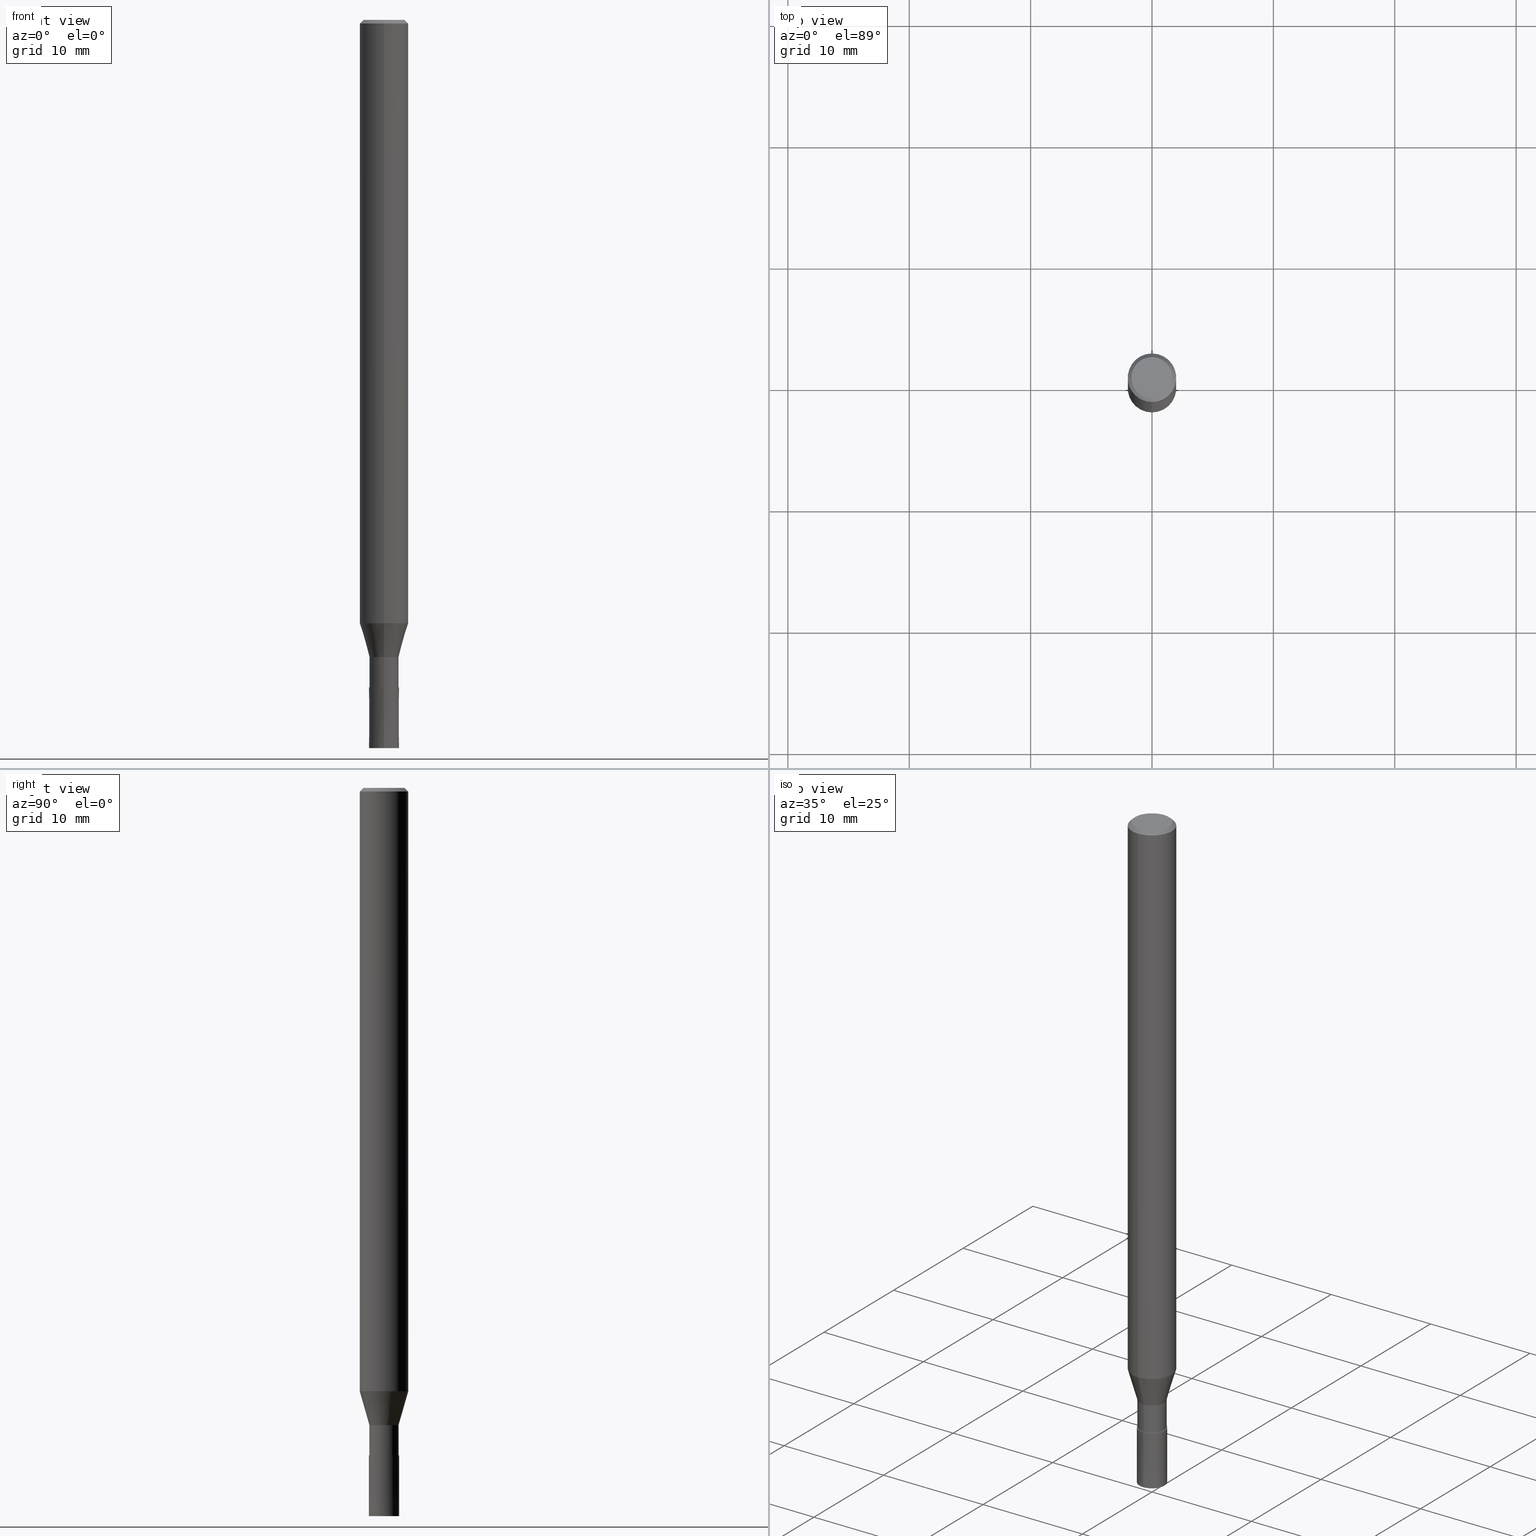
[diagram: canonical four-view strip — front | top / right | iso, engineering-drawing reading convention]
A machine part, canonical four-view strip (front | top / right | iso — engineering-drawing reading convention). The complete STEP part file that produces these views, byte-faithful:
ISO-10303-21;
HEADER;
FILE_DESCRIPTION(('no description'),'unknown implementation level');
FILE_NAME('DLC-AZS3025-075-Huellk.stp','  ',('CIMSOURCE GmbH'),('CADClick - KiM GmbH - www.kimweb.de'),'unknown preprocess','ACIS','unknown authorization');
FILE_SCHEMA(('automotive_design'));
ENDSEC;
DATA;
#1=MECHANICAL_DESIGN_GEOMETRIC_PRESENTATION_REPRESENTATION(' ',(#14,#15,#16,#17,#18,#19,#20,#21,#22,#23,#24,#25,#26,#27,#28,#29,#30,#31,#32,#33,#34,#35,#36,#37,#38,#39,#40,#41,#42,#43,#44,#45,#46,#47,#48,#49,#50,#51,#52,#53,#54,#55,#56,#57,#58,#59,#60,#61,#62,#63,#64,#65,#66,#67,#68,#69,#70,#71,#72),#10);
#2=PRODUCT_DEFINITION_CONTEXT('',#73,'design');
#3=APPLICATION_PROTOCOL_DEFINITION('INTERNATIONAL STANDARD','automotive_design',1994,#73);
#4=PRODUCT_CATEGORY_RELATIONSHIP('NONE','NONE',#74,#75);
#5=SHAPE_DEFINITION_REPRESENTATION(#76,#77);
#6=PRODUCT_DEFINITION_CONTEXT('',#78,'design');
#7=APPLICATION_PROTOCOL_DEFINITION('INTERNATIONAL STANDARD','automotive_design',1994,#78);
#8=PRODUCT_CATEGORY_RELATIONSHIP('NONE','NONE',#79,#80);
#9=SHAPE_DEFINITION_REPRESENTATION(#81,#82);
#10= (GEOMETRIC_REPRESENTATION_CONTEXT(3)GLOBAL_UNCERTAINTY_ASSIGNED_CONTEXT((#85))GLOBAL_UNIT_ASSIGNED_CONTEXT((#87,#88,#89))REPRESENTATION_CONTEXT('NONE','WORKSPACE'));
#14=STYLED_ITEM('',(#91),#92);
#15=STYLED_ITEM('',(#93),#94);
#16=STYLED_ITEM('',(#95),#96);
#17=STYLED_ITEM('',(#97),#98);
#18=STYLED_ITEM('',(#99),#100);
#19=STYLED_ITEM('',(#101),#102);
#20=STYLED_ITEM('',(#103),#104);
#21=STYLED_ITEM('',(#105),#106);
#22=STYLED_ITEM('',(#107),#108);
#23=STYLED_ITEM('',(#109),#110);
#24=STYLED_ITEM('',(#111),#112);
#25=STYLED_ITEM('',(#113),#114);
#26=STYLED_ITEM('',(#115),#116);
#27=STYLED_ITEM('',(#117),#118);
#28=STYLED_ITEM('',(#119),#120);
#29=STYLED_ITEM('',(#121),#122);
#30=STYLED_ITEM('',(#123),#124);
#31=STYLED_ITEM('',(#125),#126);
#32=STYLED_ITEM('',(#127),#128);
#33=STYLED_ITEM('',(#129),#130);
#34=STYLED_ITEM('',(#131),#132);
#35=STYLED_ITEM('',(#133),#134);
#36=STYLED_ITEM('',(#135),#136);
#37=STYLED_ITEM('',(#137),#138);
#38=STYLED_ITEM('',(#139),#140);
#39=STYLED_ITEM('',(#141),#142);
#40=STYLED_ITEM('',(#143),#144);
#41=STYLED_ITEM('',(#145),#146);
#42=STYLED_ITEM('',(#147),#148);
#43=STYLED_ITEM('',(#149),#150);
#44=STYLED_ITEM('',(#151),#152);
#45=STYLED_ITEM('',(#153),#154);
#46=STYLED_ITEM('',(#155),#156);
#47=STYLED_ITEM('',(#157),#158);
#48=STYLED_ITEM('',(#159),#160);
#49=STYLED_ITEM('',(#161),#162);
#50=STYLED_ITEM('',(#163),#164);
#51=STYLED_ITEM('',(#165),#166);
#52=STYLED_ITEM('',(#167),#168);
#53=STYLED_ITEM('',(#169),#170);
#54=STYLED_ITEM('',(#171),#172);
#55=STYLED_ITEM('',(#173),#174);
#56=STYLED_ITEM('',(#175),#176);
#57=STYLED_ITEM('',(#177),#178);
#58=STYLED_ITEM('',(#179),#180);
#59=STYLED_ITEM('',(#181),#182);
#60=STYLED_ITEM('',(#183),#184);
#61=STYLED_ITEM('',(#185),#186);
#62=STYLED_ITEM('',(#187),#188);
#63=STYLED_ITEM('',(#189),#190);
#64=STYLED_ITEM('',(#191),#192);
#65=STYLED_ITEM('',(#193),#194);
#66=STYLED_ITEM('',(#195),#196);
#67=STYLED_ITEM('',(#197),#198);
#68=STYLED_ITEM('',(#199),#200);
#69=STYLED_ITEM('',(#201),#202);
#70=STYLED_ITEM('',(#203),#204);
#71=STYLED_ITEM('',(#205),#206);
#72=STYLED_ITEM('',(#207),#208);
#73=APPLICATION_CONTEXT(' ');
#74=PRODUCT_CATEGORY('part','NONE');
#75=PRODUCT_RELATED_PRODUCT_CATEGORY('detail',' ',(#209));
#76=PRODUCT_DEFINITION_SHAPE('NONE','NONE',#210);
#77=ADVANCED_BREP_SHAPE_REPRESENTATION('1',(#120,#211),#10);
#78=APPLICATION_CONTEXT(' ');
#79=PRODUCT_CATEGORY('part','NONE');
#80=PRODUCT_RELATED_PRODUCT_CATEGORY('detail',' ',(#212));
#81=PRODUCT_DEFINITION_SHAPE('NONE','NONE',#213);
#82=ADVANCED_BREP_SHAPE_REPRESENTATION('2',(#110,#214),#10);
#85=UNCERTAINTY_MEASURE_WITH_UNIT(LENGTH_MEASURE(1.0E-006),#87,'','');
#87= (CONVERSION_BASED_UNIT('MILLIMETRE',#217)LENGTH_UNIT()NAMED_UNIT(#220));
#88= (NAMED_UNIT(#222)PLANE_ANGLE_UNIT()SI_UNIT($,.RADIAN.));
#89= (NAMED_UNIT(#222)SOLID_ANGLE_UNIT()SI_UNIT($,.STERADIAN.));
#91=PRESENTATION_STYLE_ASSIGNMENT((#228));
#92=ADVANCED_FACE('',(#229),#230,.T.);
#93=PRESENTATION_STYLE_ASSIGNMENT((#231));
#94=ADVANCED_FACE('',(#232),#233,.T.);
#95=PRESENTATION_STYLE_ASSIGNMENT((#234));
#96=EDGE_CURVE('',#162,#202,#235,.T.);
#97=PRESENTATION_STYLE_ASSIGNMENT((#236));
#98=EDGE_CURVE('',#106,#118,#237,.T.);
#99=PRESENTATION_STYLE_ASSIGNMENT((#238));
#100=EDGE_CURVE('',#126,#176,#239,.T.);
#101=PRESENTATION_STYLE_ASSIGNMENT((#240));
#102=VERTEX_POINT('',#241);
#103=PRESENTATION_STYLE_ASSIGNMENT((#242));
#104=EDGE_CURVE('',#162,#188,#243,.T.);
#105=PRESENTATION_STYLE_ASSIGNMENT((#244));
#106=VERTEX_POINT('',#245);
#107=PRESENTATION_STYLE_ASSIGNMENT((#246));
#108=EDGE_CURVE('',#176,#202,#247,.T.);
#109=PRESENTATION_STYLE_ASSIGNMENT((#248));
#110=MANIFOLD_SOLID_BREP('2',#249);
#111=PRESENTATION_STYLE_ASSIGNMENT((#250));
#112=VERTEX_POINT('',#251);
#113=PRESENTATION_STYLE_ASSIGNMENT((#252));
#114=ADVANCED_FACE('',(#253),#254,.T.);
#115=PRESENTATION_STYLE_ASSIGNMENT((#255));
#116=EDGE_CURVE('',#186,#172,#256,.T.);
#117=PRESENTATION_STYLE_ASSIGNMENT((#257));
#118=VERTEX_POINT('',#258);
#119=PRESENTATION_STYLE_ASSIGNMENT((#259));
#120=MANIFOLD_SOLID_BREP('1',#260);
#121=PRESENTATION_STYLE_ASSIGNMENT((#261));
#122=ADVANCED_FACE('',(#262),#263,.T.);
#123=PRESENTATION_STYLE_ASSIGNMENT((#264));
#124=EDGE_CURVE('',#188,#162,#265,.T.);
#125=PRESENTATION_STYLE_ASSIGNMENT((#266));
#126=VERTEX_POINT('',#267);
#127=PRESENTATION_STYLE_ASSIGNMENT((#268));
#128=EDGE_CURVE('',#202,#176,#269,.T.);
#129=PRESENTATION_STYLE_ASSIGNMENT((#270));
#130=VERTEX_POINT('',#271);
#131=PRESENTATION_STYLE_ASSIGNMENT((#272));
#132=ADVANCED_FACE('',(#273),#274,.T.);
#133=PRESENTATION_STYLE_ASSIGNMENT((#275));
#134=EDGE_CURVE('',#148,#172,#276,.T.);
#135=PRESENTATION_STYLE_ASSIGNMENT((#277));
#136=EDGE_CURVE('',#130,#200,#278,.T.);
#137=PRESENTATION_STYLE_ASSIGNMENT((#279));
#138=ADVANCED_FACE('',(#280,#281),#282,.T.);
#139=PRESENTATION_STYLE_ASSIGNMENT((#283));
#140=EDGE_CURVE('',#200,#130,#284,.T.);
#141=PRESENTATION_STYLE_ASSIGNMENT((#285));
#142=EDGE_CURVE('',#200,#118,#286,.T.);
#143=PRESENTATION_STYLE_ASSIGNMENT((#287));
#144=ADVANCED_FACE('',(#288),#289,.T.);
#145=PRESENTATION_STYLE_ASSIGNMENT((#290));
#146=ADVANCED_FACE('',(#291),#292,.T.);
#147=PRESENTATION_STYLE_ASSIGNMENT((#293));
#148=VERTEX_POINT('',#294);
#149=PRESENTATION_STYLE_ASSIGNMENT((#295));
#150=EDGE_CURVE('',#180,#186,#296,.T.);
#151=PRESENTATION_STYLE_ASSIGNMENT((#297));
#152=EDGE_CURVE('',#172,#192,#298,.T.);
#153=PRESENTATION_STYLE_ASSIGNMENT((#299));
#154=EDGE_CURVE('',#192,#180,#300,.T.);
#155=PRESENTATION_STYLE_ASSIGNMENT((#301));
#156=EDGE_CURVE('',#172,#186,#302,.T.);
#157=PRESENTATION_STYLE_ASSIGNMENT((#303));
#158=EDGE_CURVE('',#118,#106,#304,.T.);
#159=PRESENTATION_STYLE_ASSIGNMENT((#305));
#160=ADVANCED_FACE('',(#306),#307,.T.);
#161=PRESENTATION_STYLE_ASSIGNMENT((#308));
#162=VERTEX_POINT('',#309);
#163=PRESENTATION_STYLE_ASSIGNMENT((#310));
#164=ADVANCED_FACE('',(#311),#312,.T.);
#165=PRESENTATION_STYLE_ASSIGNMENT((#313));
#166=EDGE_CURVE('',#102,#126,#314,.T.);
#167=PRESENTATION_STYLE_ASSIGNMENT((#315));
#168=ADVANCED_FACE('',(#316),#317,.T.);
#169=PRESENTATION_STYLE_ASSIGNMENT((#318));
#170=EDGE_CURVE('',#202,#102,#319,.T.);
#171=PRESENTATION_STYLE_ASSIGNMENT((#320));
#172=VERTEX_POINT('',#321);
#173=PRESENTATION_STYLE_ASSIGNMENT((#322));
#174=EDGE_CURVE('',#176,#188,#323,.T.);
#175=PRESENTATION_STYLE_ASSIGNMENT((#324));
#176=VERTEX_POINT('',#325);
#177=PRESENTATION_STYLE_ASSIGNMENT((#326));
#178=EDGE_CURVE('',#112,#148,#327,.T.);
#179=PRESENTATION_STYLE_ASSIGNMENT((#328));
#180=VERTEX_POINT('',#329);
#181=PRESENTATION_STYLE_ASSIGNMENT((#330));
#182=ADVANCED_FACE('',(#331),#332,.T.);
#183=PRESENTATION_STYLE_ASSIGNMENT((#333));
#184=ADVANCED_FACE('',(#334),#335,.T.);
#185=PRESENTATION_STYLE_ASSIGNMENT((#336));
#186=VERTEX_POINT('',#337);
#187=PRESENTATION_STYLE_ASSIGNMENT((#338));
#188=VERTEX_POINT('',#339);
#189=PRESENTATION_STYLE_ASSIGNMENT((#340));
#190=EDGE_CURVE('',#148,#112,#341,.T.);
#191=PRESENTATION_STYLE_ASSIGNMENT((#342));
#192=VERTEX_POINT('',#343);
#193=PRESENTATION_STYLE_ASSIGNMENT((#344));
#194=EDGE_CURVE('',#106,#130,#345,.T.);
#195=PRESENTATION_STYLE_ASSIGNMENT((#346));
#196=ADVANCED_FACE('',(#347),#348,.T.);
#197=PRESENTATION_STYLE_ASSIGNMENT((#349));
#198=EDGE_CURVE('',#186,#112,#350,.T.);
#199=PRESENTATION_STYLE_ASSIGNMENT((#351));
#200=VERTEX_POINT('',#352);
#201=PRESENTATION_STYLE_ASSIGNMENT((#353));
#202=VERTEX_POINT('',#354);
#203=PRESENTATION_STYLE_ASSIGNMENT((#355));
#204=ADVANCED_FACE('',(#356),#357,.T.);
#205=PRESENTATION_STYLE_ASSIGNMENT((#358));
#206=EDGE_CURVE('',#180,#192,#359,.T.);
#207=PRESENTATION_STYLE_ASSIGNMENT((#360));
#208=EDGE_CURVE('',#126,#102,#361,.T.);
#209=PRODUCT('1','1','PART-1-DESC',(#362));
#210=PRODUCT_DEFINITION('NONE','NONE',#363,#2);
#211=AXIS2_PLACEMENT_3D('',#364,#365,#366);
#212=PRODUCT('2','2','PART-2-DESC',(#367));
#213=PRODUCT_DEFINITION('NONE','NONE',#368,#6);
#214=AXIS2_PLACEMENT_3D('',#369,#370,#371);
#217=LENGTH_MEASURE_WITH_UNIT(LENGTH_MEASURE(1.0),#372);
#220=DIMENSIONAL_EXPONENTS(1.0,0.0,0.0,0.0,0.0,0.0,0.0);
#222=DIMENSIONAL_EXPONENTS(0.0,0.0,0.0,0.0,0.0,0.0,0.0);
#228=SURFACE_STYLE_USAGE(.BOTH.,#373);
#229=FACE_OUTER_BOUND('',#374,.T.);
#230=PLANE('',#375);
#231=SURFACE_STYLE_USAGE(.BOTH.,#376);
#232=FACE_OUTER_BOUND('',#377,.T.);
#233=CYLINDRICAL_SURFACE('',#378,2.0);
#234=CURVE_STYLE('',#379,POSITIVE_LENGTH_MEASURE(1.0E-006),#380);
#235=LINE('',#381,#382);
#236=CURVE_STYLE('',#383,POSITIVE_LENGTH_MEASURE(1.0E-006),#384);
#237=CIRCLE('',#385,1.2499);
#238=CURVE_STYLE('',#386,POSITIVE_LENGTH_MEASURE(1.0E-006),#387);
#239=LINE('',#388,#389);
#240=POINT_STYLE(' ',#390,POSITIVE_LENGTH_MEASURE(1.0E-006),#391);
#241=CARTESIAN_POINT('',(2.08183080149804E-016,-1.7,0.0));
#242=CURVE_STYLE('',#392,POSITIVE_LENGTH_MEASURE(1.0E-006),#393);
#243=CIRCLE('',#394,2.0);
#244=POINT_STYLE(' ',#395,POSITIVE_LENGTH_MEASURE(1.0E-006),#396);
#245=CARTESIAN_POINT('',(0.0,1.2499,-55.0));
#246=CURVE_STYLE('',#397,POSITIVE_LENGTH_MEASURE(1.0E-006),#398);
#247=CIRCLE('',#399,2.0);
#248=SURFACE_STYLE_USAGE(.BOTH.,#400);
#249=CLOSED_SHELL('',(#146,#182,#196,#160));
#250=POINT_STYLE(' ',#401,POSITIVE_LENGTH_MEASURE(1.0E-006),#402);
#251=CARTESIAN_POINT('',(0.0,1.19995,-55.0));
#252=SURFACE_STYLE_USAGE(.BOTH.,#403);
#253=FACE_OUTER_BOUND('',#404,.T.);
#254=CYLINDRICAL_SURFACE('',#405,2.0);
#255=CURVE_STYLE('',#406,POSITIVE_LENGTH_MEASURE(1.0E-006),#407);
#256=CIRCLE('',#408,1.19995);
#257=POINT_STYLE(' ',#409,POSITIVE_LENGTH_MEASURE(1.0E-006),#410);
#258=CARTESIAN_POINT('',(1.53063548164259E-016,-1.2499,-55.0));
#259=SURFACE_STYLE_USAGE(.BOTH.,#411);
#260=CLOSED_SHELL('',(#144,#122,#94,#204,#138,#164,#132,#114,#168,#184,#92));
#261=SURFACE_STYLE_USAGE(.BOTH.,#412);
#262=FACE_OUTER_BOUND('',#413,.T.);
#263=CONICAL_SURFACE('',#414,1.59995,0.279246180255813);
#264=CURVE_STYLE('',#415,POSITIVE_LENGTH_MEASURE(1.0E-006),#416);
#265=CIRCLE('',#417,2.0);
#266=POINT_STYLE(' ',#418,POSITIVE_LENGTH_MEASURE(1.0E-006),#419);
#267=CARTESIAN_POINT('',(0.0,1.7,0.0));
#268=CURVE_STYLE('',#420,POSITIVE_LENGTH_MEASURE(1.0E-006),#421);
#269=CIRCLE('',#422,2.0);
#270=POINT_STYLE(' ',#423,POSITIVE_LENGTH_MEASURE(1.0E-006),#424);
#271=CARTESIAN_POINT('',(0.0,1.25,-60.0));
#272=SURFACE_STYLE_USAGE(.BOTH.,#425);
#273=FACE_OUTER_BOUND('',#426,.T.);
#274=CONICAL_SURFACE('',#427,1.85,0.785398163397453);
#275=CURVE_STYLE('',#428,POSITIVE_LENGTH_MEASURE(1.0E-006),#429);
#276=LINE('',#430,#431);
#277=CURVE_STYLE('',#432,POSITIVE_LENGTH_MEASURE(1.0E-006),#433);
#278=CIRCLE('',#434,1.25);
#279=SURFACE_STYLE_USAGE(.BOTH.,#435);
#280=FACE_OUTER_BOUND('',#436,.T.);
#281=FACE_BOUND('',#437,.T.);
#282=PLANE('',#438);
#283=CURVE_STYLE('',#439,POSITIVE_LENGTH_MEASURE(1.0E-006),#440);
#284=CIRCLE('',#441,1.25);
#285=CURVE_STYLE('',#442,POSITIVE_LENGTH_MEASURE(1.0E-006),#443);
#286=LINE('',#444,#445);
#287=SURFACE_STYLE_USAGE(.BOTH.,#446);
#288=FACE_OUTER_BOUND('',#447,.T.);
#289=CYLINDRICAL_SURFACE('',#448,1.19995);
#290=SURFACE_STYLE_USAGE(.BOTH.,#449);
#291=FACE_OUTER_BOUND('',#450,.T.);
#292=CONICAL_SURFACE('',#451,1.24995,1.99999999973311E-005);
#293=POINT_STYLE(' ',#452,POSITIVE_LENGTH_MEASURE(1.0E-006),#453);
#294=CARTESIAN_POINT('',(1.46946639426916E-016,-1.19995,-55.0));
#295=CURVE_STYLE('',#454,POSITIVE_LENGTH_MEASURE(1.0E-006),#455);
#296=LINE('',#456,#457);
#297=CURVE_STYLE('',#458,POSITIVE_LENGTH_MEASURE(1.0E-006),#459);
#298=LINE('',#460,#461);
#299=CURVE_STYLE('',#462,POSITIVE_LENGTH_MEASURE(1.0E-006),#463);
#300=CIRCLE('',#464,1.99995);
#301=CURVE_STYLE('',#465,POSITIVE_LENGTH_MEASURE(1.0E-006),#466);
#302=CIRCLE('',#467,1.19995);
#303=CURVE_STYLE('',#468,POSITIVE_LENGTH_MEASURE(1.0E-006),#469);
#304=CIRCLE('',#470,1.2499);
#305=SURFACE_STYLE_USAGE(.BOTH.,#471);
#306=FACE_OUTER_BOUND('',#472,.T.);
#307=PLANE('',#473);
#308=POINT_STYLE(' ',#474,POSITIVE_LENGTH_MEASURE(1.0E-006),#475);
#309=CARTESIAN_POINT('',(2.44921270764475E-016,-2.0,-49.71));
#310=SURFACE_STYLE_USAGE(.BOTH.,#476);
#311=FACE_OUTER_BOUND('',#477,.T.);
#312=PLANE('',#478);
#313=CURVE_STYLE('',#479,POSITIVE_LENGTH_MEASURE(1.0E-006),#480);
#314=CIRCLE('',#481,1.7);
#315=SURFACE_STYLE_USAGE(.BOTH.,#482);
#316=FACE_OUTER_BOUND('',#483,.T.);
#317=CONICAL_SURFACE('',#484,1.59995,0.279246180255813);
#318=CURVE_STYLE('',#485,POSITIVE_LENGTH_MEASURE(1.0E-006),#486);
#319=LINE('',#487,#488);
#320=POINT_STYLE(' ',#489,POSITIVE_LENGTH_MEASURE(1.0E-006),#490);
#321=CARTESIAN_POINT('',(1.46946639426916E-016,-1.19995,-52.5));
#322=CURVE_STYLE('',#491,POSITIVE_LENGTH_MEASURE(1.0E-006),#492);
#323=LINE('',#493,#494);
#324=POINT_STYLE(' ',#495,POSITIVE_LENGTH_MEASURE(1.0E-006),#496);
#325=CARTESIAN_POINT('',(0.0,2.0,-0.299999999999997));
#326=CURVE_STYLE('',#497,POSITIVE_LENGTH_MEASURE(1.0E-006),#498);
#327=CIRCLE('',#499,1.19995);
#328=POINT_STYLE(' ',#500,POSITIVE_LENGTH_MEASURE(1.0E-006),#501);
#329=CARTESIAN_POINT('',(0.0,1.99995,-49.71));
#330=SURFACE_STYLE_USAGE(.BOTH.,#502);
#331=FACE_OUTER_BOUND('',#503,.T.);
#332=PLANE('',#504);
#333=SURFACE_STYLE_USAGE(.BOTH.,#505);
#334=FACE_OUTER_BOUND('',#506,.T.);
#335=CYLINDRICAL_SURFACE('',#507,1.19995);
#336=POINT_STYLE(' ',#508,POSITIVE_LENGTH_MEASURE(1.0E-006),#509);
#337=CARTESIAN_POINT('',(0.0,1.19995,-52.5));
#338=POINT_STYLE(' ',#510,POSITIVE_LENGTH_MEASURE(1.0E-006),#511);
#339=CARTESIAN_POINT('',(0.0,2.0,-49.71));
#340=CURVE_STYLE('',#512,POSITIVE_LENGTH_MEASURE(1.0E-006),#513);
#341=CIRCLE('',#514,1.19995);
#342=POINT_STYLE(' ',#515,POSITIVE_LENGTH_MEASURE(1.0E-006),#516);
#343=CARTESIAN_POINT('',(2.44915147732706E-016,-1.99995,-49.71));
#344=CURVE_STYLE('',#517,POSITIVE_LENGTH_MEASURE(1.0E-006),#518);
#345=LINE('',#519,#520);
#346=SURFACE_STYLE_USAGE(.BOTH.,#521);
#347=FACE_OUTER_BOUND('',#522,.T.);
#348=CONICAL_SURFACE('',#523,1.24995,1.99999999973311E-005);
#349=CURVE_STYLE('',#524,POSITIVE_LENGTH_MEASURE(1.0E-006),#525);
#350=LINE('',#526,#527);
#351=POINT_STYLE(' ',#528,POSITIVE_LENGTH_MEASURE(1.0E-006),#529);
#352=CARTESIAN_POINT('',(1.53075794227797E-016,-1.25,-60.0));
#353=POINT_STYLE(' ',#530,POSITIVE_LENGTH_MEASURE(1.0E-006),#531);
#354=CARTESIAN_POINT('',(2.44921270764475E-016,-2.0,-0.299999999999997));
#355=SURFACE_STYLE_USAGE(.BOTH.,#532);
#356=FACE_OUTER_BOUND('',#533,.T.);
#357=CONICAL_SURFACE('',#534,1.85,0.785398163397453);
#358=CURVE_STYLE('',#535,POSITIVE_LENGTH_MEASURE(1.0E-006),#536);
#359=CIRCLE('',#537,1.99995);
#360=CURVE_STYLE('',#538,POSITIVE_LENGTH_MEASURE(1.0E-006),#539);
#361=CIRCLE('',#540,1.7);
#362=PRODUCT_CONTEXT('',#73,'mechanical');
#363=PRODUCT_DEFINITION_FORMATION_WITH_SPECIFIED_SOURCE(' ','NONE',#209,.NOT_KNOWN.);
#364=CARTESIAN_POINT('',(0.0,0.0,0.0));
#365=DIRECTION('',(0.0,0.0,1.0));
#366=DIRECTION('',(1.0,0.0,0.0));
#367=PRODUCT_CONTEXT('',#78,'mechanical');
#368=PRODUCT_DEFINITION_FORMATION_WITH_SPECIFIED_SOURCE(' ','NONE',#212,.NOT_KNOWN.);
#369=CARTESIAN_POINT('',(0.0,0.0,0.0));
#370=DIRECTION('',(0.0,0.0,1.0));
#371=DIRECTION('',(1.0,0.0,0.0));
#372= (NAMED_UNIT(#220)LENGTH_UNIT()SI_UNIT(.MILLI.,.METRE.));
#373=SURFACE_SIDE_STYLE('',(#542));
#374=EDGE_LOOP('',(#543,#544));
#375=AXIS2_PLACEMENT_3D('',#545,#546,#547);
#376=SURFACE_SIDE_STYLE('',(#548));
#377=EDGE_LOOP('',(#549,#550,#551,#552));
#378=AXIS2_PLACEMENT_3D('',#553,#554,#555);
#379=DRAUGHTING_PRE_DEFINED_CURVE_FONT('continuous');
#380=COLOUR_RGB('',0.498039215803146,0.498039215803146,0.498039215803146);
#381=CARTESIAN_POINT('',(2.44921270764475E-016,-2.0,-25.005));
#382=VECTOR('',#556,1.0);
#383=DRAUGHTING_PRE_DEFINED_CURVE_FONT('continuous');
#384=COLOUR_RGB('',0.800000011920929,0.800000011920929,0.800000011920929);
#385=AXIS2_PLACEMENT_3D('',#557,#558,#559);
#386=DRAUGHTING_PRE_DEFINED_CURVE_FONT('continuous');
#387=COLOUR_RGB('',0.498039215803146,0.498039215803146,0.498039215803146);
#388=CARTESIAN_POINT('',(-2.2655217545714E-016,1.85,-0.149999999999999));
#389=VECTOR('',#560,1.0);
#390=PRE_DEFINED_MARKER('');
#391=COLOUR_RGB('',0.498039215803146,0.498039215803146,0.498039215803146);
#392=DRAUGHTING_PRE_DEFINED_CURVE_FONT('continuous');
#393=COLOUR_RGB('',0.498039215803146,0.498039215803146,0.498039215803146);
#394=AXIS2_PLACEMENT_3D('',#561,#562,#563);
#395=PRE_DEFINED_MARKER('');
#396=COLOUR_RGB('',0.800000011920929,0.800000011920929,0.800000011920929);
#397=DRAUGHTING_PRE_DEFINED_CURVE_FONT('continuous');
#398=COLOUR_RGB('',0.498039215803146,0.498039215803146,0.498039215803146);
#399=AXIS2_PLACEMENT_3D('',#564,#565,#566);
#400=SURFACE_SIDE_STYLE('',(#567));
#401=PRE_DEFINED_MARKER('');
#402=COLOUR_RGB('',0.498039215803146,0.498039215803146,0.498039215803146);
#403=SURFACE_SIDE_STYLE('',(#568));
#404=EDGE_LOOP('',(#569,#570,#571,#572));
#405=AXIS2_PLACEMENT_3D('',#573,#574,#575);
#406=DRAUGHTING_PRE_DEFINED_CURVE_FONT('continuous');
#407=COLOUR_RGB('',0.498039215803146,0.498039215803146,0.498039215803146);
#408=AXIS2_PLACEMENT_3D('',#576,#577,#578);
#409=PRE_DEFINED_MARKER('');
#410=COLOUR_RGB('',0.800000011920929,0.800000011920929,0.800000011920929);
#411=SURFACE_SIDE_STYLE('',(#579));
#412=SURFACE_SIDE_STYLE('',(#580));
#413=EDGE_LOOP('',(#581,#582,#583,#584));
#414=AXIS2_PLACEMENT_3D('',#585,#586,#587);
#415=DRAUGHTING_PRE_DEFINED_CURVE_FONT('continuous');
#416=COLOUR_RGB('',0.498039215803146,0.498039215803146,0.498039215803146);
#417=AXIS2_PLACEMENT_3D('',#588,#589,#590);
#418=PRE_DEFINED_MARKER('');
#419=COLOUR_RGB('',0.498039215803146,0.498039215803146,0.498039215803146);
#420=DRAUGHTING_PRE_DEFINED_CURVE_FONT('continuous');
#421=COLOUR_RGB('',0.498039215803146,0.498039215803146,0.498039215803146);
#422=AXIS2_PLACEMENT_3D('',#591,#592,#593);
#423=PRE_DEFINED_MARKER('');
#424=COLOUR_RGB('',0.800000011920929,0.800000011920929,0.800000011920929);
#425=SURFACE_SIDE_STYLE('',(#594));
#426=EDGE_LOOP('',(#595,#596,#597,#598));
#427=AXIS2_PLACEMENT_3D('',#599,#600,#601);
#428=DRAUGHTING_PRE_DEFINED_CURVE_FONT('continuous');
#429=COLOUR_RGB('',0.498039215803146,0.498039215803146,0.498039215803146);
#430=CARTESIAN_POINT('',(1.46946639426916E-016,-1.19995,-53.75));
#431=VECTOR('',#602,1.0);
#432=DRAUGHTING_PRE_DEFINED_CURVE_FONT('continuous');
#433=COLOUR_RGB('',0.800000011920929,0.800000011920929,0.800000011920929);
#434=AXIS2_PLACEMENT_3D('',#603,#604,#605);
#435=SURFACE_SIDE_STYLE('',(#606));
#436=EDGE_LOOP('',(#607,#608));
#437=EDGE_LOOP('',(#609,#610));
#438=AXIS2_PLACEMENT_3D('',#611,#612,#613);
#439=DRAUGHTING_PRE_DEFINED_CURVE_FONT('continuous');
#440=COLOUR_RGB('',0.800000011920929,0.800000011920929,0.800000011920929);
#441=AXIS2_PLACEMENT_3D('',#614,#615,#616);
#442=DRAUGHTING_PRE_DEFINED_CURVE_FONT('continuous');
#443=COLOUR_RGB('',0.800000011920929,0.800000011920929,0.800000011920929);
#444=CARTESIAN_POINT('',(1.53069671196028E-016,-1.24995,-57.5));
#445=VECTOR('',#617,1.0);
#446=SURFACE_SIDE_STYLE('',(#618));
#447=EDGE_LOOP('',(#619,#620,#621,#622));
#448=AXIS2_PLACEMENT_3D('',#623,#624,#625);
#449=SURFACE_SIDE_STYLE('',(#626));
#450=EDGE_LOOP('',(#627,#628,#629,#630));
#451=AXIS2_PLACEMENT_3D('',#631,#632,#633);
#452=PRE_DEFINED_MARKER('');
#453=COLOUR_RGB('',0.498039215803146,0.498039215803146,0.498039215803146);
#454=DRAUGHTING_PRE_DEFINED_CURVE_FONT('continuous');
#455=COLOUR_RGB('',0.498039215803146,0.498039215803146,0.498039215803146);
#456=CARTESIAN_POINT('',(-1.95930893579811E-016,1.59995,-51.105));
#457=VECTOR('',#634,1.0);
#458=DRAUGHTING_PRE_DEFINED_CURVE_FONT('continuous');
#459=COLOUR_RGB('',0.498039215803146,0.498039215803146,0.498039215803146);
#460=CARTESIAN_POINT('',(1.95930893579811E-016,-1.59995,-51.105));
#461=VECTOR('',#635,1.0);
#462=DRAUGHTING_PRE_DEFINED_CURVE_FONT('continuous');
#463=COLOUR_RGB('',0.498039215803146,0.498039215803146,0.498039215803146);
#464=AXIS2_PLACEMENT_3D('',#636,#637,#638);
#465=DRAUGHTING_PRE_DEFINED_CURVE_FONT('continuous');
#466=COLOUR_RGB('',0.498039215803146,0.498039215803146,0.498039215803146);
#467=AXIS2_PLACEMENT_3D('',#639,#640,#641);
#468=DRAUGHTING_PRE_DEFINED_CURVE_FONT('continuous');
#469=COLOUR_RGB('',0.800000011920929,0.800000011920929,0.800000011920929);
#470=AXIS2_PLACEMENT_3D('',#642,#643,#644);
#471=SURFACE_SIDE_STYLE('',(#645));
#472=EDGE_LOOP('',(#646,#647));
#473=AXIS2_PLACEMENT_3D('',#648,#649,#650);
#474=PRE_DEFINED_MARKER('');
#475=COLOUR_RGB('',0.498039215803146,0.498039215803146,0.498039215803146);
#476=SURFACE_SIDE_STYLE('',(#651));
#477=EDGE_LOOP('',(#652,#653));
#478=AXIS2_PLACEMENT_3D('',#654,#655,#656);
#479=DRAUGHTING_PRE_DEFINED_CURVE_FONT('continuous');
#480=COLOUR_RGB('',0.498039215803146,0.498039215803146,0.498039215803146);
#481=AXIS2_PLACEMENT_3D('',#657,#658,#659);
#482=SURFACE_SIDE_STYLE('',(#660));
#483=EDGE_LOOP('',(#661,#662,#663,#664));
#484=AXIS2_PLACEMENT_3D('',#665,#666,#667);
#485=DRAUGHTING_PRE_DEFINED_CURVE_FONT('continuous');
#486=COLOUR_RGB('',0.498039215803146,0.498039215803146,0.498039215803146);
#487=CARTESIAN_POINT('',(2.2655217545714E-016,-1.85,-0.149999999999999));
#488=VECTOR('',#668,1.0);
#489=PRE_DEFINED_MARKER('');
#490=COLOUR_RGB('',0.498039215803146,0.498039215803146,0.498039215803146);
#491=DRAUGHTING_PRE_DEFINED_CURVE_FONT('continuous');
#492=COLOUR_RGB('',0.498039215803146,0.498039215803146,0.498039215803146);
#493=CARTESIAN_POINT('',(-2.44921270764475E-016,2.0,-25.005));
#494=VECTOR('',#669,1.0);
#495=PRE_DEFINED_MARKER('');
#496=COLOUR_RGB('',0.498039215803146,0.498039215803146,0.498039215803146);
#497=DRAUGHTING_PRE_DEFINED_CURVE_FONT('continuous');
#498=COLOUR_RGB('',0.498039215803146,0.498039215803146,0.498039215803146);
#499=AXIS2_PLACEMENT_3D('',#670,#671,#672);
#500=PRE_DEFINED_MARKER('');
#501=COLOUR_RGB('',0.498039215803146,0.498039215803146,0.498039215803146);
#502=SURFACE_SIDE_STYLE('',(#673));
#503=EDGE_LOOP('',(#674,#675));
#504=AXIS2_PLACEMENT_3D('',#676,#677,#678);
#505=SURFACE_SIDE_STYLE('',(#679));
#506=EDGE_LOOP('',(#680,#681,#682,#683));
#507=AXIS2_PLACEMENT_3D('',#684,#685,#686);
#508=PRE_DEFINED_MARKER('');
#509=COLOUR_RGB('',0.498039215803146,0.498039215803146,0.498039215803146);
#510=PRE_DEFINED_MARKER('');
#511=COLOUR_RGB('',0.498039215803146,0.498039215803146,0.498039215803146);
#512=DRAUGHTING_PRE_DEFINED_CURVE_FONT('continuous');
#513=COLOUR_RGB('',0.498039215803146,0.498039215803146,0.498039215803146);
#514=AXIS2_PLACEMENT_3D('',#687,#688,#689);
#515=PRE_DEFINED_MARKER('');
#516=COLOUR_RGB('',0.498039215803146,0.498039215803146,0.498039215803146);
#517=DRAUGHTING_PRE_DEFINED_CURVE_FONT('continuous');
#518=COLOUR_RGB('',0.800000011920929,0.800000011920929,0.800000011920929);
#519=CARTESIAN_POINT('',(-1.53069671196028E-016,1.24995,-57.5));
#520=VECTOR('',#690,1.0);
#521=SURFACE_SIDE_STYLE('',(#691));
#522=EDGE_LOOP('',(#692,#693,#694,#695));
#523=AXIS2_PLACEMENT_3D('',#696,#697,#698);
#524=DRAUGHTING_PRE_DEFINED_CURVE_FONT('continuous');
#525=COLOUR_RGB('',0.498039215803146,0.498039215803146,0.498039215803146);
#526=CARTESIAN_POINT('',(-1.46946639426916E-016,1.19995,-53.75));
#527=VECTOR('',#699,1.0);
#528=PRE_DEFINED_MARKER('');
#529=COLOUR_RGB('',0.800000011920929,0.800000011920929,0.800000011920929);
#530=PRE_DEFINED_MARKER('');
#531=COLOUR_RGB('',0.498039215803146,0.498039215803146,0.498039215803146);
#532=SURFACE_SIDE_STYLE('',(#700));
#533=EDGE_LOOP('',(#701,#702,#703,#704));
#534=AXIS2_PLACEMENT_3D('',#705,#706,#707);
#535=DRAUGHTING_PRE_DEFINED_CURVE_FONT('continuous');
#536=COLOUR_RGB('',0.498039215803146,0.498039215803146,0.498039215803146);
#537=AXIS2_PLACEMENT_3D('',#708,#709,#710);
#538=DRAUGHTING_PRE_DEFINED_CURVE_FONT('continuous');
#539=COLOUR_RGB('',0.498039215803146,0.498039215803146,0.498039215803146);
#540=AXIS2_PLACEMENT_3D('',#711,#712,#713);
#542=SURFACE_STYLE_FILL_AREA(#714);
#543=ORIENTED_EDGE('',*,*,#178,.T.);
#544=ORIENTED_EDGE('',*,*,#190,.T.);
#545=CARTESIAN_POINT('',(0.0,0.599975,-55.0));
#546=DIRECTION('',(0.0,0.0,-1.0));
#547=DIRECTION('',(0.0,1.0,0.0));
#548=SURFACE_STYLE_FILL_AREA(#715);
#549=ORIENTED_EDGE('',*,*,#174,.F.);
#550=ORIENTED_EDGE('',*,*,#108,.T.);
#551=ORIENTED_EDGE('',*,*,#96,.F.);
#552=ORIENTED_EDGE('',*,*,#124,.F.);
#553=CARTESIAN_POINT('',(0.0,0.0,-25.005));
#554=DIRECTION('',(-0.0,-0.0,1.0));
#555=DIRECTION('',(0.0,1.0,0.0));
#556=DIRECTION('',(-0.0,-0.0,1.0));
#557=CARTESIAN_POINT('',(0.0,0.0,-55.0));
#558=DIRECTION('',(0.0,0.0,-1.0));
#559=DIRECTION('',(0.0,1.0,0.0));
#560=DIRECTION('',(-8.6592745707194E-017,0.707106781186551,-0.707106781186544));
#561=CARTESIAN_POINT('',(0.0,0.0,-49.71));
#562=DIRECTION('',(0.0,0.0,-1.0));
#563=DIRECTION('',(0.0,1.0,0.0));
#564=CARTESIAN_POINT('',(0.0,0.0,-0.299999999999997));
#565=DIRECTION('',(0.0,0.0,-1.0));
#566=DIRECTION('',(0.0,1.0,0.0));
#567=SURFACE_STYLE_FILL_AREA(#716);
#568=SURFACE_STYLE_FILL_AREA(#717);
#569=ORIENTED_EDGE('',*,*,#174,.T.);
#570=ORIENTED_EDGE('',*,*,#104,.F.);
#571=ORIENTED_EDGE('',*,*,#96,.T.);
#572=ORIENTED_EDGE('',*,*,#128,.T.);
#573=CARTESIAN_POINT('',(0.0,0.0,-25.005));
#574=DIRECTION('',(-0.0,-0.0,1.0));
#575=DIRECTION('',(0.0,1.0,0.0));
#576=CARTESIAN_POINT('',(0.0,0.0,-52.5));
#577=DIRECTION('',(0.0,0.0,-1.0));
#578=DIRECTION('',(0.0,1.0,0.0));
#579=SURFACE_STYLE_FILL_AREA(#718);
#580=SURFACE_STYLE_FILL_AREA(#719);
#581=ORIENTED_EDGE('',*,*,#150,.F.);
#582=ORIENTED_EDGE('',*,*,#206,.T.);
#583=ORIENTED_EDGE('',*,*,#152,.F.);
#584=ORIENTED_EDGE('',*,*,#116,.F.);
#585=CARTESIAN_POINT('',(0.0,0.0,-51.105));
#586=DIRECTION('',(-0.0,-0.0,1.0));
#587=DIRECTION('',(0.0,1.0,0.0));
#588=CARTESIAN_POINT('',(0.0,0.0,-49.71));
#589=DIRECTION('',(0.0,0.0,-1.0));
#590=DIRECTION('',(0.0,1.0,0.0));
#591=CARTESIAN_POINT('',(0.0,0.0,-0.299999999999997));
#592=DIRECTION('',(0.0,0.0,-1.0));
#593=DIRECTION('',(0.0,1.0,0.0));
#594=SURFACE_STYLE_FILL_AREA(#720);
#595=ORIENTED_EDGE('',*,*,#100,.T.);
#596=ORIENTED_EDGE('',*,*,#128,.F.);
#597=ORIENTED_EDGE('',*,*,#170,.T.);
#598=ORIENTED_EDGE('',*,*,#166,.T.);
#599=CARTESIAN_POINT('',(0.0,0.0,-0.149999999999999));
#600=DIRECTION('',(0.0,-0.0,-1.0));
#601=DIRECTION('',(0.0,1.0,0.0));
#602=DIRECTION('',(-0.0,-0.0,1.0));
#603=CARTESIAN_POINT('',(0.0,0.0,-60.0));
#604=DIRECTION('',(0.0,0.0,-1.0));
#605=DIRECTION('',(0.0,1.0,0.0));
#606=SURFACE_STYLE_FILL_AREA(#721);
#607=ORIENTED_EDGE('',*,*,#124,.T.);
#608=ORIENTED_EDGE('',*,*,#104,.T.);
#609=ORIENTED_EDGE('',*,*,#206,.F.);
#610=ORIENTED_EDGE('',*,*,#154,.F.);
#611=CARTESIAN_POINT('',(0.0,1.0,-49.71));
#612=DIRECTION('',(0.0,0.0,-1.0));
#613=DIRECTION('',(0.0,1.0,0.0));
#614=CARTESIAN_POINT('',(0.0,0.0,-60.0));
#615=DIRECTION('',(0.0,0.0,-1.0));
#616=DIRECTION('',(0.0,1.0,0.0));
#617=DIRECTION('',(-2.44921270715464E-021,1.99999999959978E-005,0.9999999998));
#618=SURFACE_STYLE_FILL_AREA(#722);
#619=ORIENTED_EDGE('',*,*,#198,.F.);
#620=ORIENTED_EDGE('',*,*,#116,.T.);
#621=ORIENTED_EDGE('',*,*,#134,.F.);
#622=ORIENTED_EDGE('',*,*,#178,.F.);
#623=CARTESIAN_POINT('',(0.0,0.0,-53.75));
#624=DIRECTION('',(-0.0,-0.0,1.0));
#625=DIRECTION('',(0.0,1.0,0.0));
#626=SURFACE_STYLE_FILL_AREA(#723);
#627=ORIENTED_EDGE('',*,*,#194,.F.);
#628=ORIENTED_EDGE('',*,*,#98,.T.);
#629=ORIENTED_EDGE('',*,*,#142,.F.);
#630=ORIENTED_EDGE('',*,*,#136,.F.);
#631=CARTESIAN_POINT('',(0.0,0.0,-57.5));
#632=DIRECTION('',(0.0,-0.0,-1.0));
#633=DIRECTION('',(0.0,1.0,0.0));
#634=DIRECTION('',(3.37539605616001E-017,-0.275631107549324,-0.961263487578267));
#635=DIRECTION('',(3.37539605616001E-017,-0.275631107549324,0.961263487578267));
#636=CARTESIAN_POINT('',(0.0,0.0,-49.71));
#637=DIRECTION('',(0.0,0.0,-1.0));
#638=DIRECTION('',(0.0,1.0,0.0));
#639=CARTESIAN_POINT('',(0.0,0.0,-52.5));
#640=DIRECTION('',(0.0,0.0,-1.0));
#641=DIRECTION('',(0.0,1.0,0.0));
#642=CARTESIAN_POINT('',(0.0,0.0,-55.0));
#643=DIRECTION('',(0.0,0.0,-1.0));
#644=DIRECTION('',(0.0,1.0,0.0));
#645=SURFACE_STYLE_FILL_AREA(#724);
#646=ORIENTED_EDGE('',*,*,#136,.T.);
#647=ORIENTED_EDGE('',*,*,#140,.T.);
#648=CARTESIAN_POINT('',(0.0,0.6225,-60.0));
#649=DIRECTION('',(0.0,0.0,-1.0));
#650=DIRECTION('',(0.0,1.0,0.0));
#651=SURFACE_STYLE_FILL_AREA(#725);
#652=ORIENTED_EDGE('',*,*,#208,.F.);
#653=ORIENTED_EDGE('',*,*,#166,.F.);
#654=CARTESIAN_POINT('',(0.0,0.85,0.0));
#655=DIRECTION('',(-0.0,0.0,1.0));
#656=DIRECTION('',(0.0,-1.0,0.0));
#657=CARTESIAN_POINT('',(0.0,0.0,0.0));
#658=DIRECTION('',(0.0,0.0,-1.0));
#659=DIRECTION('',(0.0,1.0,0.0));
#660=SURFACE_STYLE_FILL_AREA(#726);
#661=ORIENTED_EDGE('',*,*,#150,.T.);
#662=ORIENTED_EDGE('',*,*,#156,.F.);
#663=ORIENTED_EDGE('',*,*,#152,.T.);
#664=ORIENTED_EDGE('',*,*,#154,.T.);
#665=CARTESIAN_POINT('',(0.0,0.0,-51.105));
#666=DIRECTION('',(-0.0,-0.0,1.0));
#667=DIRECTION('',(0.0,1.0,0.0));
#668=DIRECTION('',(-8.6592745707194E-017,0.707106781186551,0.707106781186544));
#669=DIRECTION('',(0.0,0.0,-1.0));
#670=CARTESIAN_POINT('',(0.0,0.0,-55.0));
#671=DIRECTION('',(0.0,0.0,-1.0));
#672=DIRECTION('',(0.0,1.0,0.0));
#673=SURFACE_STYLE_FILL_AREA(#727);
#674=ORIENTED_EDGE('',*,*,#98,.F.);
#675=ORIENTED_EDGE('',*,*,#158,.F.);
#676=CARTESIAN_POINT('',(0.0,0.62495,-55.0));
#677=DIRECTION('',(-0.0,0.0,1.0));
#678=DIRECTION('',(0.0,-1.0,0.0));
#679=SURFACE_STYLE_FILL_AREA(#728);
#680=ORIENTED_EDGE('',*,*,#198,.T.);
#681=ORIENTED_EDGE('',*,*,#190,.F.);
#682=ORIENTED_EDGE('',*,*,#134,.T.);
#683=ORIENTED_EDGE('',*,*,#156,.T.);
#684=CARTESIAN_POINT('',(0.0,0.0,-53.75));
#685=DIRECTION('',(-0.0,-0.0,1.0));
#686=DIRECTION('',(0.0,1.0,0.0));
#687=CARTESIAN_POINT('',(0.0,0.0,-55.0));
#688=DIRECTION('',(0.0,0.0,-1.0));
#689=DIRECTION('',(0.0,1.0,0.0));
#690=DIRECTION('',(-2.44921270715464E-021,1.99999999959978E-005,-0.9999999998));
#691=SURFACE_STYLE_FILL_AREA(#729);
#692=ORIENTED_EDGE('',*,*,#194,.T.);
#693=ORIENTED_EDGE('',*,*,#140,.F.);
#694=ORIENTED_EDGE('',*,*,#142,.T.);
#695=ORIENTED_EDGE('',*,*,#158,.T.);
#696=CARTESIAN_POINT('',(0.0,0.0,-57.5));
#697=DIRECTION('',(0.0,-0.0,-1.0));
#698=DIRECTION('',(0.0,1.0,0.0));
#699=DIRECTION('',(0.0,0.0,-1.0));
#700=SURFACE_STYLE_FILL_AREA(#730);
#701=ORIENTED_EDGE('',*,*,#100,.F.);
#702=ORIENTED_EDGE('',*,*,#208,.T.);
#703=ORIENTED_EDGE('',*,*,#170,.F.);
#704=ORIENTED_EDGE('',*,*,#108,.F.);
#705=CARTESIAN_POINT('',(0.0,0.0,-0.149999999999999));
#706=DIRECTION('',(0.0,-0.0,-1.0));
#707=DIRECTION('',(0.0,1.0,0.0));
#708=CARTESIAN_POINT('',(0.0,0.0,-49.71));
#709=DIRECTION('',(0.0,0.0,-1.0));
#710=DIRECTION('',(0.0,1.0,0.0));
#711=CARTESIAN_POINT('',(0.0,0.0,0.0));
#712=DIRECTION('',(0.0,0.0,-1.0));
#713=DIRECTION('',(0.0,1.0,0.0));
#714=FILL_AREA_STYLE('',(#731));
#715=FILL_AREA_STYLE('',(#732));
#716=FILL_AREA_STYLE('',(#733));
#717=FILL_AREA_STYLE('',(#734));
#718=FILL_AREA_STYLE('',(#735));
#719=FILL_AREA_STYLE('',(#736));
#720=FILL_AREA_STYLE('',(#737));
#721=FILL_AREA_STYLE('',(#738));
#722=FILL_AREA_STYLE('',(#739));
#723=FILL_AREA_STYLE('',(#740));
#724=FILL_AREA_STYLE('',(#741));
#725=FILL_AREA_STYLE('',(#742));
#726=FILL_AREA_STYLE('',(#743));
#727=FILL_AREA_STYLE('',(#744));
#728=FILL_AREA_STYLE('',(#745));
#729=FILL_AREA_STYLE('',(#746));
#730=FILL_AREA_STYLE('',(#747));
#731=FILL_AREA_STYLE_COLOUR('',#748);
#732=FILL_AREA_STYLE_COLOUR('',#749);
#733=FILL_AREA_STYLE_COLOUR('',#750);
#734=FILL_AREA_STYLE_COLOUR('',#751);
#735=FILL_AREA_STYLE_COLOUR('',#752);
#736=FILL_AREA_STYLE_COLOUR('',#753);
#737=FILL_AREA_STYLE_COLOUR('',#754);
#738=FILL_AREA_STYLE_COLOUR('',#755);
#739=FILL_AREA_STYLE_COLOUR('',#756);
#740=FILL_AREA_STYLE_COLOUR('',#757);
#741=FILL_AREA_STYLE_COLOUR('',#758);
#742=FILL_AREA_STYLE_COLOUR('',#759);
#743=FILL_AREA_STYLE_COLOUR('',#760);
#744=FILL_AREA_STYLE_COLOUR('',#761);
#745=FILL_AREA_STYLE_COLOUR('',#762);
#746=FILL_AREA_STYLE_COLOUR('',#763);
#747=FILL_AREA_STYLE_COLOUR('',#764);
#748=COLOUR_RGB('',0.498039215803146,0.498039215803146,0.498039215803146);
#749=COLOUR_RGB('',0.498039215803146,0.498039215803146,0.498039215803146);
#750=COLOUR_RGB('',0.800000011920929,0.800000011920929,0.800000011920929);
#751=COLOUR_RGB('',0.498039215803146,0.498039215803146,0.498039215803146);
#752=COLOUR_RGB('',0.498039215803146,0.498039215803146,0.498039215803146);
#753=COLOUR_RGB('',0.498039215803146,0.498039215803146,0.498039215803146);
#754=COLOUR_RGB('',0.498039215803146,0.498039215803146,0.498039215803146);
#755=COLOUR_RGB('',0.498039215803146,0.498039215803146,0.498039215803146);
#756=COLOUR_RGB('',0.498039215803146,0.498039215803146,0.498039215803146);
#757=COLOUR_RGB('',0.800000011920929,0.800000011920929,0.800000011920929);
#758=COLOUR_RGB('',0.800000011920929,0.800000011920929,0.800000011920929);
#759=COLOUR_RGB('',0.498039215803146,0.498039215803146,0.498039215803146);
#760=COLOUR_RGB('',0.498039215803146,0.498039215803146,0.498039215803146);
#761=COLOUR_RGB('',0.800000011920929,0.800000011920929,0.800000011920929);
#762=COLOUR_RGB('',0.498039215803146,0.498039215803146,0.498039215803146);
#763=COLOUR_RGB('',0.800000011920929,0.800000011920929,0.800000011920929);
#764=COLOUR_RGB('',0.498039215803146,0.498039215803146,0.498039215803146);
#765=AXIS2_PLACEMENT_3D('PCS',#766,#767,#768);
#766=CARTESIAN_POINT('',(0.0,0.0,0.0));
#767=DIRECTION('',(0.0,0.0,1.0));
#768=DIRECTION('',(1.0,0.0,0.0));
#769=AXIS2_PLACEMENT_3D('CIP',#770,#771,#772);
#770=CARTESIAN_POINT('',(0.0,0.0,-60.0));
#771=DIRECTION('',(0.0,0.0,1.0));
#772=DIRECTION('',(1.0,0.0,0.0));
#773=AXIS2_PLACEMENT_3D('CRP',#774,#775,#776);
#774=CARTESIAN_POINT('',(-1.25,0.0,-60.0));
#775=DIRECTION('',(0.0,0.0,1.0));
#776=DIRECTION('',(1.0,0.0,0.0));
#777=AXIS2_PLACEMENT_3D('MCS',#778,#779,#780);
#778=CARTESIAN_POINT('',(0.0,0.0,-49.71));
#779=DIRECTION('',(0.0,0.0,1.0));
#780=DIRECTION('',(1.0,0.0,0.0));
#781=CONSTRUCTIVE_GEOMETRY_REPRESENTATION_RELATIONSHIP('coordinate systems',$,#77,#782);
#782=CONSTRUCTIVE_GEOMETRY_REPRESENTATION('coordinate systems',(#765,#769,#773,#777),#10);
ENDSEC;
END-ISO-10303-21;
